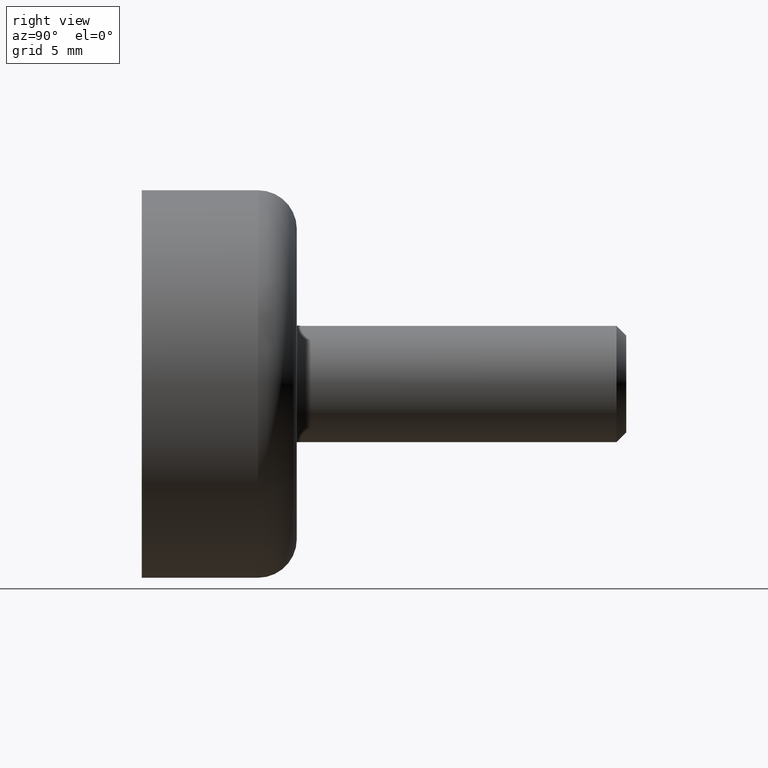
[diagram: clean part render]
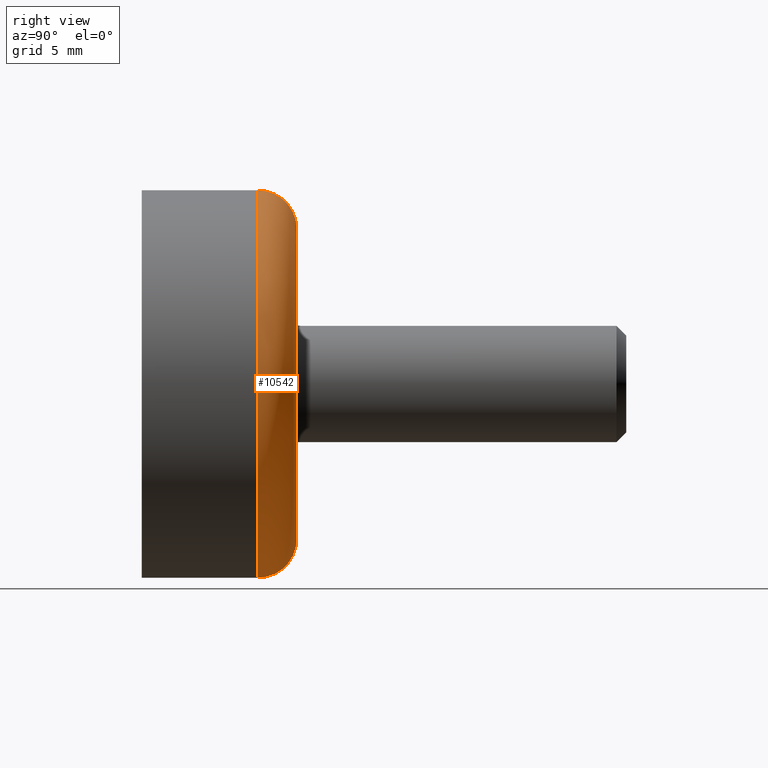
[diagram: same view with one face highlighted and labeled with its STEP entity id]
A machine part, right view. The second image highlights one B-rep face of the part: STEP entity #10542.
In plain terms, the highlighted toroidal blend (fillet) surface has major radius 8 mm and minor (blend) radius 2 mm.
Its self-contained STEP definition (entity closure, byte-faithful):
#74 = CIRCLE ( 'NONE', #3895, 10.00000000000000000 ) ;
#344 = VERTEX_POINT ( 'NONE', #13370 ) ;
#479 = ORIENTED_EDGE ( 'NONE', *, *, #9348, .F. ) ;
#691 = AXIS2_PLACEMENT_3D ( 'NONE', #11541, #8260, #1336 ) ;
#1336 = DIRECTION ( 'NONE',  ( 0.000000000000000000, 0.000000000000000000, 1.000000000000000000 ) ) ;
#1382 = CIRCLE ( 'NONE', #13851, 2.000000000000000000 ) ;
#2588 = EDGE_CURVE ( 'NONE', #11740, #344, #1382, .T. ) ;
#2688 = CARTESIAN_POINT ( 'NONE',  ( 0.000000000000000000, 7.999999999999998224, 8.000000000000000000 ) ) ;
#2893 = ORIENTED_EDGE ( 'NONE', *, *, #10469, .F. ) ;
#2978 = DIRECTION ( 'NONE',  ( 0.000000000000000000, 1.000000000000000000, 0.000000000000000000 ) ) ;
#3552 = DIRECTION ( 'NONE',  ( 1.224646799147353454E-16, 0.000000000000000000, -1.000000000000000000 ) ) ;
#3644 = DIRECTION ( 'NONE',  ( 1.000000000000000000, -0.000000000000000000, 1.224646799147353207E-16 ) ) ;
#3765 = ORIENTED_EDGE ( 'NONE', *, *, #2588, .T. ) ;
#3895 = AXIS2_PLACEMENT_3D ( 'NONE', #12229, #8663, #4037 ) ;
#4037 = DIRECTION ( 'NONE',  ( 0.000000000000000000, 0.000000000000000000, 1.000000000000000000 ) ) ;
#4343 = DIRECTION ( 'NONE',  ( 0.000000000000000000, 0.000000000000000000, 1.000000000000000000 ) ) ;
#4592 = TOROIDAL_SURFACE ( 'NONE', #13965, 8.000000000000000000, 2.000000000000000000 ) ;
#5352 = DIRECTION ( 'NONE',  ( 0.000000000000000000, 0.000000000000000000, 1.000000000000000000 ) ) ;
#6093 = CARTESIAN_POINT ( 'NONE',  ( 1.224646799147353256E-15, 5.999999999999998224, 10.00000000000000000 ) ) ;
#7732 = CARTESIAN_POINT ( 'NONE',  ( 0.000000000000000000, 5.999999999999998224, 0.000000000000000000 ) ) ;
#8029 = CIRCLE ( 'NONE', #691, 2.000000000000000000 ) ;
#8260 = DIRECTION ( 'NONE',  ( -1.000000000000000000, 0.000000000000000000, 0.000000000000000000 ) ) ;
#8356 = CIRCLE ( 'NONE', #8840, 8.000000000000000000 ) ;
#8611 = CARTESIAN_POINT ( 'NONE',  ( 0.000000000000000000, 5.999999999999998224, -10.00000000000000000 ) ) ;
#8663 = DIRECTION ( 'NONE',  ( -0.000000000000000000, -1.000000000000000000, -0.000000000000000000 ) ) ;
#8840 = AXIS2_PLACEMENT_3D ( 'NONE', #13315, #2978, #5352 ) ;
#8864 = VERTEX_POINT ( 'NONE', #2688 ) ;
#9348 = EDGE_CURVE ( 'NONE', #8864, #344, #8356, .T. ) ;
#9876 = ORIENTED_EDGE ( 'NONE', *, *, #11548, .F. ) ;
#10156 = EDGE_LOOP ( 'NONE', ( #2893, #3765, #479, #9876 ) ) ;
#10469 = EDGE_CURVE ( 'NONE', #11740, #12809, #74, .T. ) ;
#10542 = ADVANCED_FACE ( 'NONE', ( #11480 ), #4592, .T. ) ;
#11480 = FACE_OUTER_BOUND ( 'NONE', #10156, .T. ) ;
#11541 = CARTESIAN_POINT ( 'NONE',  ( 0.000000000000000000, 5.999999999999998224, 8.000000000000000000 ) ) ;
#11548 = EDGE_CURVE ( 'NONE', #12809, #8864, #8029, .T. ) ;
#11740 = VERTEX_POINT ( 'NONE', #8611 ) ;
#11786 = CARTESIAN_POINT ( 'NONE',  ( 9.797174393178825657E-16, 5.999999999999998224, -8.000000000000000000 ) ) ;
#12229 = CARTESIAN_POINT ( 'NONE',  ( 0.000000000000000000, 5.999999999999998224, 0.000000000000000000 ) ) ;
#12809 = VERTEX_POINT ( 'NONE', #6093 ) ;
#13315 = CARTESIAN_POINT ( 'NONE',  ( 0.000000000000000000, 7.999999999999998224, 0.000000000000000000 ) ) ;
#13370 = CARTESIAN_POINT ( 'NONE',  ( 1.102182119232617714E-15, 7.999999999999998224, -8.000000000000000000 ) ) ;
#13851 = AXIS2_PLACEMENT_3D ( 'NONE', #11786, #3644, #3552 ) ;
#13965 = AXIS2_PLACEMENT_3D ( 'NONE', #7732, #14730, #4343 ) ;
#14730 = DIRECTION ( 'NONE',  ( 0.000000000000000000, 1.000000000000000000, 0.000000000000000000 ) ) ;